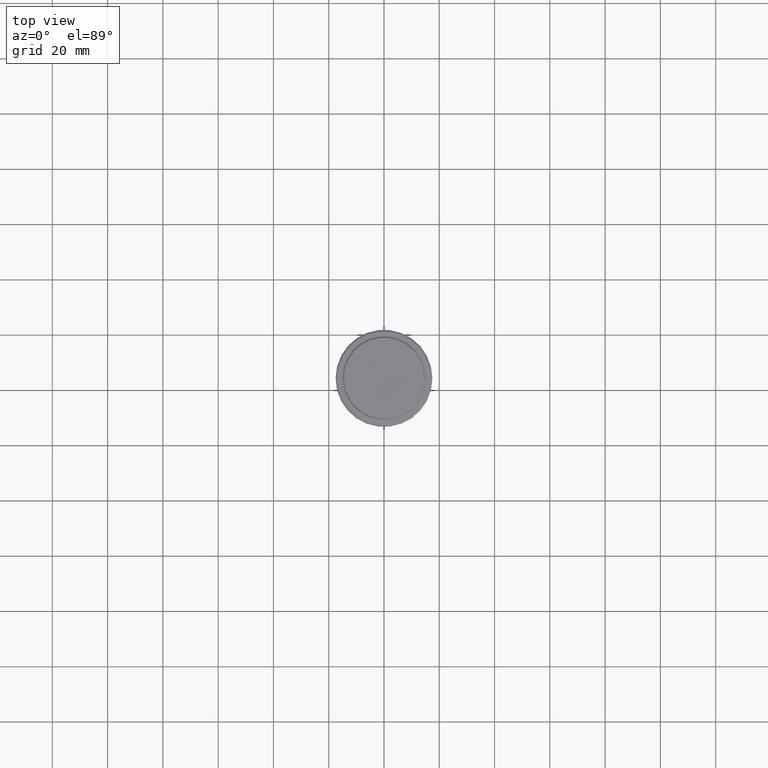
[diagram: clean part render]
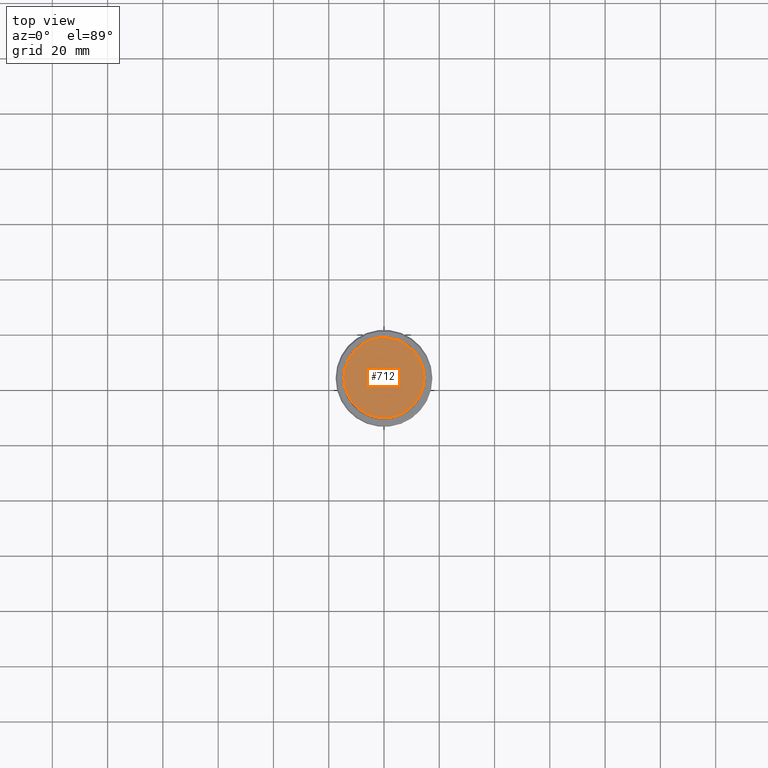
[diagram: same view with one face highlighted and labeled with its STEP entity id]
A machine part, top view. The second image highlights one B-rep face of the part: STEP entity #712.
In plain terms, the highlighted planar face has unit normal (0, -0, 1).
Its self-contained STEP definition (entity closure, byte-faithful):
#10 = AXIS2_PLACEMENT_3D ( 'NONE', #509, #286, #824 ) ;
#37 = EDGE_LOOP ( 'NONE', ( #657, #187 ) ) ;
#112 = EDGE_CURVE ( 'NONE', #1390, #773, #1113, .T. ) ;
#187 = ORIENTED_EDGE ( 'NONE', *, *, #1012, .T. ) ;
#286 = DIRECTION ( 'NONE',  ( -0.000000000000000000, -0.000000000000000000, 1.000000000000000000 ) ) ;
#287 = CIRCLE ( 'NONE', #10, 14.49999999999998401 ) ;
#303 = CARTESIAN_POINT ( 'NONE',  ( 0.000000000000000000, 0.000000000000000000, 0.000000000000000000 ) ) ;
#330 = AXIS2_PLACEMENT_3D ( 'NONE', #380, #626, #821 ) ;
#364 = CARTESIAN_POINT ( 'NONE',  ( -14.49999999999998401, 0.000000000000000000, 0.000000000000000000 ) ) ;
#380 = CARTESIAN_POINT ( 'NONE',  ( 0.000000000000000000, 0.000000000000000000, 0.000000000000000000 ) ) ;
#509 = CARTESIAN_POINT ( 'NONE',  ( 0.000000000000000000, 0.000000000000000000, 0.000000000000000000 ) ) ;
#556 = DIRECTION ( 'NONE',  ( 0.000000000000000000, -0.000000000000000000, 1.000000000000000000 ) ) ;
#626 = DIRECTION ( 'NONE',  ( -0.000000000000000000, -0.000000000000000000, 1.000000000000000000 ) ) ;
#657 = ORIENTED_EDGE ( 'NONE', *, *, #112, .T. ) ;
#712 = ADVANCED_FACE ( 'NONE', ( #986 ), #1210, .T. ) ;
#773 = VERTEX_POINT ( 'NONE', #1038 ) ;
#821 = DIRECTION ( 'NONE',  ( 1.000000000000000000, 0.000000000000000000, 0.000000000000000000 ) ) ;
#824 = DIRECTION ( 'NONE',  ( 1.000000000000000000, 0.000000000000000000, 0.000000000000000000 ) ) ;
#986 = FACE_OUTER_BOUND ( 'NONE', #37, .T. ) ;
#1012 = EDGE_CURVE ( 'NONE', #773, #1390, #287, .T. ) ;
#1038 = CARTESIAN_POINT ( 'NONE',  ( 14.49999999999998401, 1.806354028742345013E-15, 0.000000000000000000 ) ) ;
#1113 = CIRCLE ( 'NONE', #330, 14.49999999999998401 ) ;
#1210 = PLANE ( 'NONE',  #1359 ) ;
#1359 = AXIS2_PLACEMENT_3D ( 'NONE', #303, #556, #1404 ) ;
#1390 = VERTEX_POINT ( 'NONE', #364 ) ;
#1404 = DIRECTION ( 'NONE',  ( 1.000000000000000000, 0.000000000000000000, 0.000000000000000000 ) ) ;